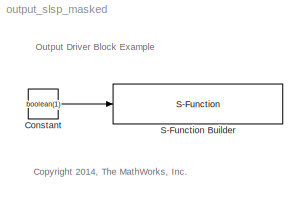
MODEL output_slsp_masked
KIND model
BLOCK [Constant] Constant
  SID = 2
  Value = boolean(1)
BLOCK [S-Function] S-Function Builder
  CopyFcn = set_param(gcbh,'LinkStatus','none')
  EnableBusSupport = off
  FunctionName = sfcn_exout_slsp
  InitFcn = try, set_param(gcb,'FunctionName','sfcn_exout_slsp'), end
  OpenFcn = sfunctionwizard(gcbh)
  Parameters = uint8(Pin)
  Ports = [1]
  PreSaveFcn = try, set_param(gcb,'FunctionName','sfcn_exout_slsp'), end
  SFunctionModules = sfcn_exout_slsp_wrapper
  SID = 5
  WizardData = DataTag0
ANNOTATION (root): <copyright redacted>
ANNOTATION (root): Output Driver Block Example
LINE Constant:1 -> S-Function Builder:1
